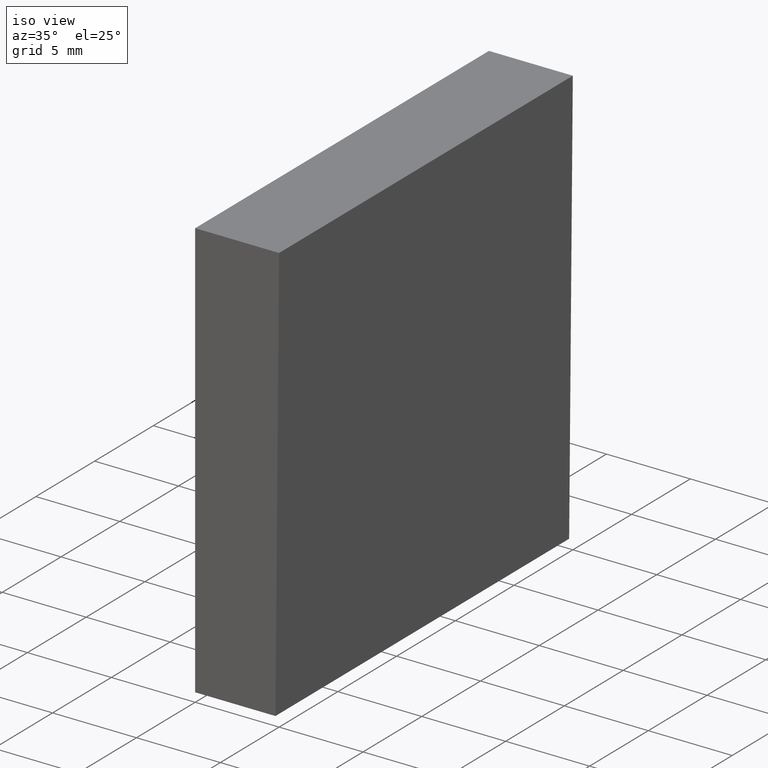
[diagram: clean part render]
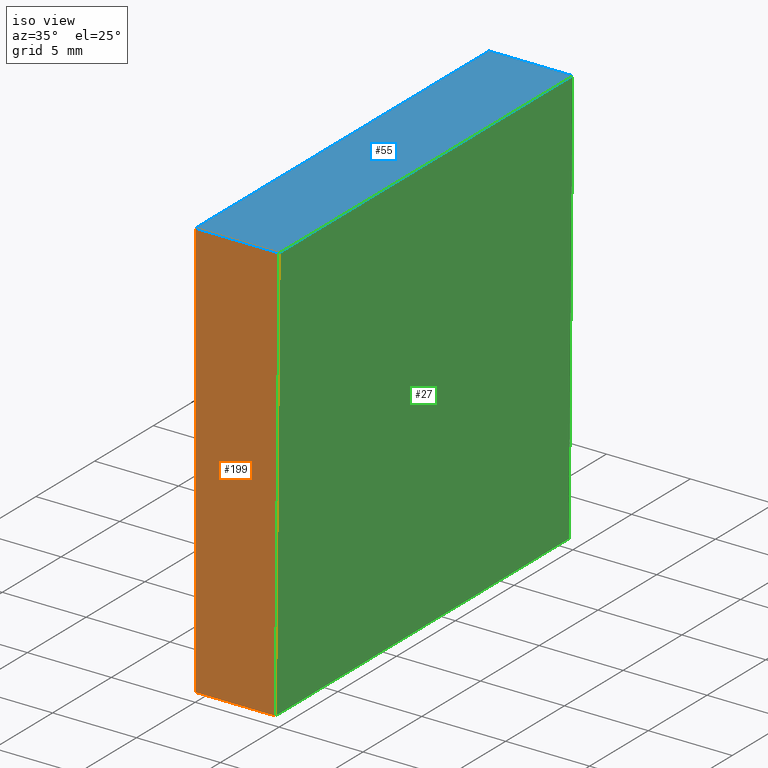
[diagram: same view with three faces highlighted in distinct colors, each labeled with its STEP entity id]
A machine part, iso view with three faces highlighted in distinct colors.
Their STEP definitions:

[orange] entity #199 — the highlighted planar face has unit normal (0, -1, 0).
#3 = VECTOR ( 'NONE', #130, 1000.000000000000000 ) ;
#5 = EDGE_LOOP ( 'NONE', ( #200, #190, #34, #75 ) ) ;
#19 = CARTESIAN_POINT ( 'NONE',  ( 0.0000000000000000000, 0.0000000000000000000, 0.0000000000000000000 ) ) ;
#24 = LINE ( 'NONE', #40, #196 ) ;
#28 = VERTEX_POINT ( 'NONE', #201 ) ;
#34 = ORIENTED_EDGE ( 'NONE', *, *, #77, .F. ) ;
#38 = CARTESIAN_POINT ( 'NONE',  ( 1.734723475976807100E-015, 0.0000000000000000000, -12.50000000000000000 ) ) ;
#40 = CARTESIAN_POINT ( 'NONE',  ( 1.734723475976807100E-015, 0.0000000000000000000, -12.50000000000000000 ) ) ;
#49 = CARTESIAN_POINT ( 'NONE',  ( 1.734723475976807100E-015, 0.0000000000000000000, -12.50000000000000000 ) ) ;
#50 = CARTESIAN_POINT ( 'NONE',  ( 5.000000000000003600, 0.0000000000000000000, 12.50000000000000000 ) ) ;
#63 = DIRECTION ( 'NONE',  ( 0.0000000000000000000, -0.0000000000000000000, -1.000000000000000000 ) ) ;
#64 = FACE_OUTER_BOUND ( 'NONE', #5, .T. ) ;
#67 = CARTESIAN_POINT ( 'NONE',  ( 5.000000000000003600, 0.0000000000000000000, 12.50000000000000000 ) ) ;
#71 = VECTOR ( 'NONE', #163, 1000.000000000000000 ) ;
#75 = ORIENTED_EDGE ( 'NONE', *, *, #87, .F. ) ;
#77 = EDGE_CURVE ( 'NONE', #28, #113, #142, .T. ) ;
#82 = PLANE ( 'NONE',  #98 ) ;
#85 = CARTESIAN_POINT ( 'NONE',  ( 4.781828305231207400, 0.0000000000000000000, -12.50000000000000000 ) ) ;
#86 = DIRECTION ( 'NONE',  ( 0.0000000000000000000, 0.0000000000000000000, 1.000000000000000000 ) ) ;
#87 = EDGE_CURVE ( 'NONE', #186, #28, #24, .T. ) ;
#98 = AXIS2_PLACEMENT_3D ( 'NONE', #19, #176, #63 ) ;
#111 = VERTEX_POINT ( 'NONE', #85 ) ;
#113 = VERTEX_POINT ( 'NONE', #67 ) ;
#124 = EDGE_CURVE ( 'NONE', #113, #111, #177, .T. ) ;
#125 = LINE ( 'NONE', #49, #3 ) ;
#130 = DIRECTION ( 'NONE',  ( -1.000000000000000000, -0.0000000000000000000, -0.0000000000000000000 ) ) ;
#139 = VECTOR ( 'NONE', #148, 1000.000000000000200 ) ;
#142 = LINE ( 'NONE', #149, #71 ) ;
#148 = DIRECTION ( 'NONE',  ( -0.008726535498366983600, 0.0000000000000000000, -0.9999619230641713100 ) ) ;
#149 = CARTESIAN_POINT ( 'NONE',  ( 1.734723475976807100E-015, 0.0000000000000000000, 12.50000000000000000 ) ) ;
#163 = DIRECTION ( 'NONE',  ( 1.000000000000000000, 0.0000000000000000000, 0.0000000000000000000 ) ) ;
#169 = EDGE_CURVE ( 'NONE', #111, #186, #125, .T. ) ;
#176 = DIRECTION ( 'NONE',  ( 0.0000000000000000000, -1.000000000000000000, 0.0000000000000000000 ) ) ;
#177 = LINE ( 'NONE', #50, #139 ) ;
#186 = VERTEX_POINT ( 'NONE', #38 ) ;
#190 = ORIENTED_EDGE ( 'NONE', *, *, #124, .F. ) ;
#196 = VECTOR ( 'NONE', #86, 1000.000000000000000 ) ;
#199 = ADVANCED_FACE ( 'NONE', ( #64 ), #82, .T. ) ;
#200 = ORIENTED_EDGE ( 'NONE', *, *, #169, .F. ) ;
#201 = CARTESIAN_POINT ( 'NONE',  ( 1.734723475976807100E-015, 0.0000000000000000000, 12.50000000000000000 ) ) ;

[blue] entity #55 — the highlighted planar face has unit normal (0, 0, -1).
#7 = CARTESIAN_POINT ( 'NONE',  ( 5.000000000000003600, 25.00000000000000000, 12.50000000000000000 ) ) ;
#8 = DIRECTION ( 'NONE',  ( -0.0000000000000000000, -1.000000000000000000, -0.0000000000000000000 ) ) ;
#22 = CARTESIAN_POINT ( 'NONE',  ( 5.000000000000003600, 25.00000000000000000, 12.50000000000000000 ) ) ;
#23 = DIRECTION ( 'NONE',  ( 0.0000000000000000000, 0.0000000000000000000, -1.000000000000000000 ) ) ;
#25 = PLANE ( 'NONE',  #123 ) ;
#26 = LINE ( 'NONE', #131, #78 ) ;
#28 = VERTEX_POINT ( 'NONE', #201 ) ;
#31 = ORIENTED_EDGE ( 'NONE', *, *, #185, .T. ) ;
#48 = ORIENTED_EDGE ( 'NONE', *, *, #104, .F. ) ;
#55 = ADVANCED_FACE ( 'NONE', ( #127 ), #25, .F. ) ;
#66 = LINE ( 'NONE', #129, #194 ) ;
#67 = CARTESIAN_POINT ( 'NONE',  ( 5.000000000000003600, 0.0000000000000000000, 12.50000000000000000 ) ) ;
#71 = VECTOR ( 'NONE', #163, 1000.000000000000000 ) ;
#72 = ORIENTED_EDGE ( 'NONE', *, *, #143, .F. ) ;
#77 = EDGE_CURVE ( 'NONE', #28, #113, #142, .T. ) ;
#78 = VECTOR ( 'NONE', #193, 1000.000000000000000 ) ;
#92 = VECTOR ( 'NONE', #8, 1000.000000000000000 ) ;
#100 = EDGE_LOOP ( 'NONE', ( #184, #48, #72, #31 ) ) ;
#104 = EDGE_CURVE ( 'NONE', #147, #113, #121, .T. ) ;
#108 = VERTEX_POINT ( 'NONE', #181 ) ;
#113 = VERTEX_POINT ( 'NONE', #67 ) ;
#116 = DIRECTION ( 'NONE',  ( -1.000000000000000000, 0.0000000000000000000, -0.0000000000000000000 ) ) ;
#121 = LINE ( 'NONE', #22, #92 ) ;
#123 = AXIS2_PLACEMENT_3D ( 'NONE', #197, #23, #116 ) ;
#127 = FACE_OUTER_BOUND ( 'NONE', #100, .T. ) ;
#129 = CARTESIAN_POINT ( 'NONE',  ( 1.734723475976807100E-015, 25.00000000000000000, 12.50000000000000000 ) ) ;
#131 = CARTESIAN_POINT ( 'NONE',  ( 1.734723475976807100E-015, 25.00000000000000000, 12.50000000000000000 ) ) ;
#142 = LINE ( 'NONE', #149, #71 ) ;
#143 = EDGE_CURVE ( 'NONE', #108, #147, #26, .T. ) ;
#146 = DIRECTION ( 'NONE',  ( -0.0000000000000000000, -1.000000000000000000, -0.0000000000000000000 ) ) ;
#147 = VERTEX_POINT ( 'NONE', #7 ) ;
#149 = CARTESIAN_POINT ( 'NONE',  ( 1.734723475976807100E-015, 0.0000000000000000000, 12.50000000000000000 ) ) ;
#163 = DIRECTION ( 'NONE',  ( 1.000000000000000000, 0.0000000000000000000, 0.0000000000000000000 ) ) ;
#181 = CARTESIAN_POINT ( 'NONE',  ( 1.734723475976807100E-015, 25.00000000000000000, 12.50000000000000000 ) ) ;
#184 = ORIENTED_EDGE ( 'NONE', *, *, #77, .T. ) ;
#185 = EDGE_CURVE ( 'NONE', #108, #28, #66, .T. ) ;
#193 = DIRECTION ( 'NONE',  ( 1.000000000000000000, 0.0000000000000000000, 0.0000000000000000000 ) ) ;
#194 = VECTOR ( 'NONE', #146, 1000.000000000000000 ) ;
#197 = CARTESIAN_POINT ( 'NONE',  ( 1.734723475976807100E-015, 25.00000000000000000, 12.50000000000000000 ) ) ;
#201 = CARTESIAN_POINT ( 'NONE',  ( 1.734723475976807100E-015, 0.0000000000000000000, 12.50000000000000000 ) ) ;

[green] entity #27 — the highlighted planar face has unit normal (-1, 0, 0.0087).
#7 = CARTESIAN_POINT ( 'NONE',  ( 5.000000000000003600, 25.00000000000000000, 12.50000000000000000 ) ) ;
#8 = DIRECTION ( 'NONE',  ( -0.0000000000000000000, -1.000000000000000000, -0.0000000000000000000 ) ) ;
#11 = CARTESIAN_POINT ( 'NONE',  ( 5.000000000000003600, 25.00000000000000000, 12.50000000000000000 ) ) ;
#15 = AXIS2_PLACEMENT_3D ( 'NONE', #166, #105, #52 ) ;
#21 = ORIENTED_EDGE ( 'NONE', *, *, #124, .T. ) ;
#22 = CARTESIAN_POINT ( 'NONE',  ( 5.000000000000003600, 25.00000000000000000, 12.50000000000000000 ) ) ;
#27 = ADVANCED_FACE ( 'NONE', ( #122 ), #180, .F. ) ;
#50 = CARTESIAN_POINT ( 'NONE',  ( 5.000000000000003600, 0.0000000000000000000, 12.50000000000000000 ) ) ;
#51 = CARTESIAN_POINT ( 'NONE',  ( 4.781828305231207400, 25.00000000000000000, -12.50000000000000000 ) ) ;
#52 = DIRECTION ( 'NONE',  ( 0.008726535498366981900, 0.0000000000000000000, 0.9999619230641713100 ) ) ;
#59 = EDGE_CURVE ( 'NONE', #147, #160, #76, .T. ) ;
#60 = EDGE_LOOP ( 'NONE', ( #21, #152, #79, #106 ) ) ;
#65 = CARTESIAN_POINT ( 'NONE',  ( 4.781828305231207400, 25.00000000000000000, -12.50000000000000000 ) ) ;
#67 = CARTESIAN_POINT ( 'NONE',  ( 5.000000000000003600, 0.0000000000000000000, 12.50000000000000000 ) ) ;
#70 = EDGE_CURVE ( 'NONE', #160, #111, #202, .T. ) ;
#76 = LINE ( 'NONE', #11, #198 ) ;
#79 = ORIENTED_EDGE ( 'NONE', *, *, #59, .F. ) ;
#85 = CARTESIAN_POINT ( 'NONE',  ( 4.781828305231207400, 0.0000000000000000000, -12.50000000000000000 ) ) ;
#92 = VECTOR ( 'NONE', #8, 1000.000000000000000 ) ;
#101 = DIRECTION ( 'NONE',  ( -0.0000000000000000000, -1.000000000000000000, -0.0000000000000000000 ) ) ;
#103 = VECTOR ( 'NONE', #101, 1000.000000000000000 ) ;
#104 = EDGE_CURVE ( 'NONE', #147, #113, #121, .T. ) ;
#105 = DIRECTION ( 'NONE',  ( -0.9999619230641714200, 0.0000000000000000000, 0.008726535498366983600 ) ) ;
#106 = ORIENTED_EDGE ( 'NONE', *, *, #104, .T. ) ;
#111 = VERTEX_POINT ( 'NONE', #85 ) ;
#113 = VERTEX_POINT ( 'NONE', #67 ) ;
#121 = LINE ( 'NONE', #22, #92 ) ;
#122 = FACE_OUTER_BOUND ( 'NONE', #60, .T. ) ;
#124 = EDGE_CURVE ( 'NONE', #113, #111, #177, .T. ) ;
#132 = DIRECTION ( 'NONE',  ( -0.008726535498366983600, 0.0000000000000000000, -0.9999619230641713100 ) ) ;
#139 = VECTOR ( 'NONE', #148, 1000.000000000000200 ) ;
#147 = VERTEX_POINT ( 'NONE', #7 ) ;
#148 = DIRECTION ( 'NONE',  ( -0.008726535498366983600, 0.0000000000000000000, -0.9999619230641713100 ) ) ;
#152 = ORIENTED_EDGE ( 'NONE', *, *, #70, .F. ) ;
#160 = VERTEX_POINT ( 'NONE', #65 ) ;
#166 = CARTESIAN_POINT ( 'NONE',  ( 5.000000000000003600, 25.00000000000000000, 12.50000000000000000 ) ) ;
#177 = LINE ( 'NONE', #50, #139 ) ;
#180 = PLANE ( 'NONE',  #15 ) ;
#198 = VECTOR ( 'NONE', #132, 1000.000000000000200 ) ;
#202 = LINE ( 'NONE', #51, #103 ) ;